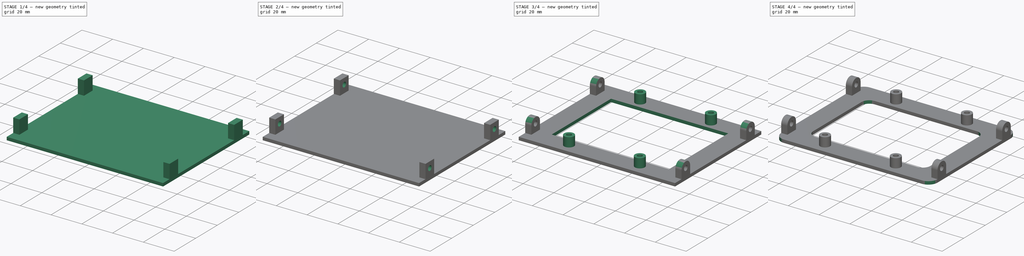
[diagram: build sequence overview — one tinted view per stage of 4, left to right]
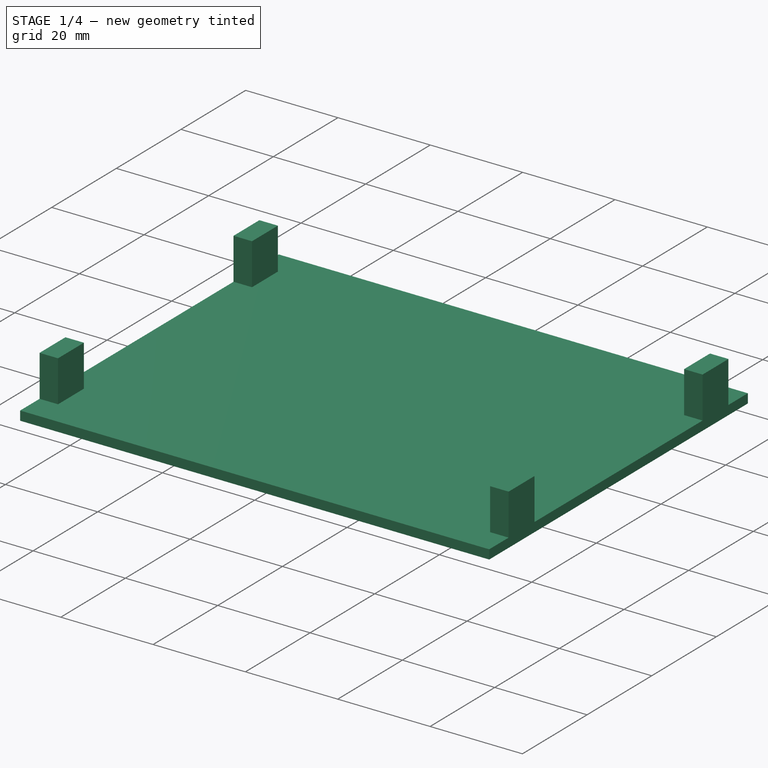
[diagram: stage 1 of 4 — iso view after this stage's code; geometry added in this stage tinted green]
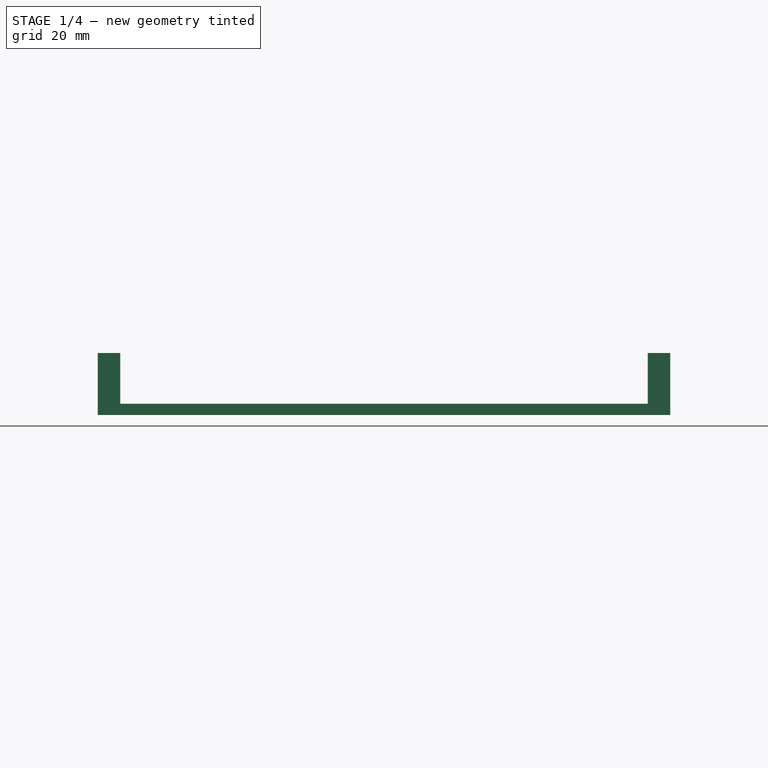
[diagram: stage 1 of 4 — front view after this stage's code; geometry added in this stage tinted green]
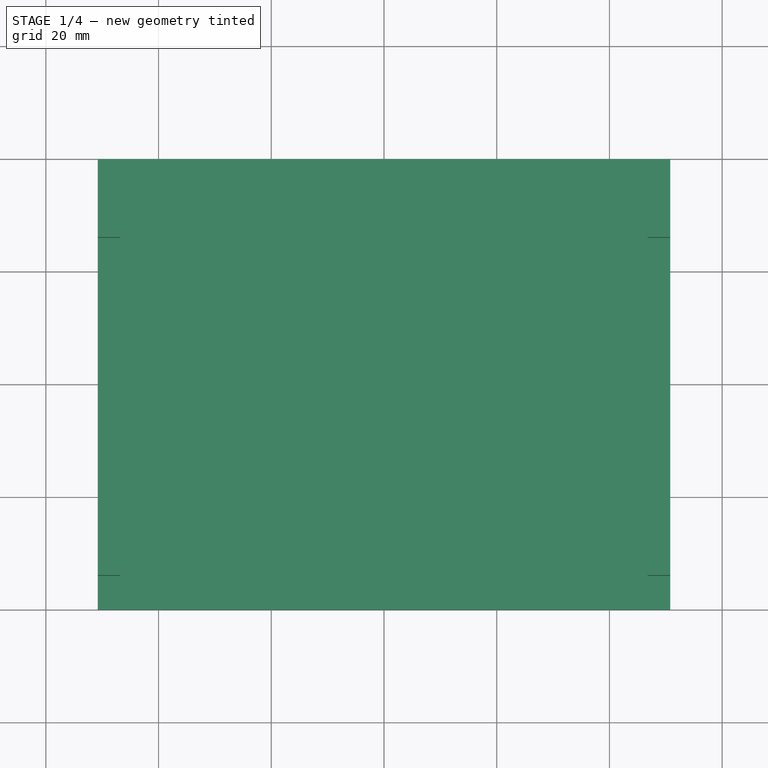
[diagram: stage 1 of 4 — top view after this stage's code; geometry added in this stage tinted green]
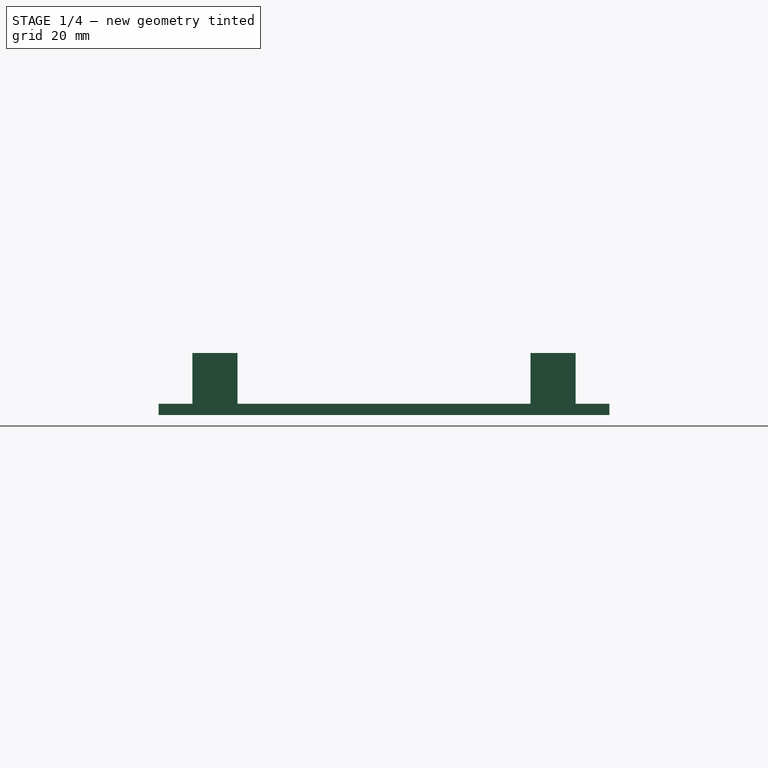
[diagram: stage 1 of 4 — right view after this stage's code; geometry added in this stage tinted green]
FCSTD DOCUMENT  (FreeCAD 0.20R24848 (Git))
Label: 5x7-pcb-in-3.5-holder
License: All rights reserved
LicenseURL: http://en.wikipedia.org/wiki/All_rights_reserved
objects: Sketcher::SketchObject×6, PartDesign::Pad×3, PartDesign::Pocket×3, PartDesign::Fillet×3, Spreadsheet::Sheet×1, PartDesign::Body×1, App::Part×1
note: 25 computed .brp shape members not serialized (recipe doc carries the construction recipe); baked Part::Feature solids carry a one-line shape summary decoded from their .brp

FEATURE [Spreadsheet::Sheet] Spreadsheet
  cells = A2=width_out; B2(width_out)==101.6mm; A3=length_out; B3(length_out)==80mm; A5=plate_thickness; B5(plate_thickness)==2mm; A7=hole_dist_o; B7(hole_dist_o)==60mm; C7=hole_diameter; D7(hole_diameter)==3.25mm; A8=hole_height_o; B8(hole_heigt_o)==7mm; C8=side_holder_height; D8(side_holder_height)==11mm; C9=side_holder_width; D9(side_holder_width)==8mm; A10=wall_thickness; B10(wall_thickness)==4mm; A12=pcb_hole_dist_x; B12(pcb_hole_dist_x)==46mm; A13=pcb_hole_dist_y; B13(pcb_hole_dist_y)==66mm; A14=pcb_hole_diameter; B14(pcb_hole_diameter)==3.2mm
FEATURE [Sketcher::SketchObject] Sketch
  FullyConstrained = true
  MapMode = 5
  Support = -> [XY_Plane001]
  expr: Constraints[6] = Spreadsheet.width_out
  expr: Constraints[7] = Spreadsheet.length_out
  sketch-geometry (4):
    g0: LineSegment StartX=-50.8 StartY=40 StartZ=0 EndX=50.8 EndY=40 EndZ=0
    g1: LineSegment StartX=50.8 StartY=40 StartZ=0 EndX=50.8 EndY=-40 EndZ=0
    g2: LineSegment StartX=50.8 StartY=-40 StartZ=0 EndX=-50.8 EndY=-40 EndZ=0
    g3: LineSegment StartX=-50.8 StartY=-40 StartZ=0 EndX=-50.8 EndY=40 EndZ=0
  constraints (10):
    c: Coincident(g0,g1)
    c: Coincident(g1,g2)
    c: Coincident(g2,g3)
    c: Coincident(g3,g0)
    c: Horizontal(g2)
    c: Vertical(g1)
    c: Distance(g2) = 101.6
    c: Distance(g3) = 80
    c: Symmetric(g0,g2,g-1)
    c: Symmetric(g0,g0,g-2)
FEATURE [PartDesign::Pad] Pad
  Direction = (0,0,1)
  Length = 2
  Length2 = 100
  Profile = -> Sketch
  Type = 0
  expr: Length = Spreadsheet.plate_thickness
FEATURE [Sketcher::SketchObject] Sketch001
  ExternalGeometry = -> [Pad]
  FullyConstrained = true
  MapMode = 5
  Placement = pos=(0,0,2) rot=(0,0,1;0rad)
  Support = -> [Pad]
  expr: Constraints[45] = Spreadsheet.hole_dist_o
  expr: Constraints[41] = Spreadsheet.side_holder_width
  expr: Constraints[37] = Spreadsheet.wall_thickness
  sketch-geometry (18):
    g0: LineSegment StartX=-50.8 StartY=34 StartZ=0 EndX=-46.8 EndY=34 EndZ=0
    g1: LineSegment StartX=-46.8 StartY=34 StartZ=0 EndX=-46.8 EndY=26 EndZ=0
    g2: LineSegment StartX=-46.8 StartY=26 StartZ=0 EndX=-50.8 EndY=26 EndZ=0
    g3: LineSegment StartX=-50.8 StartY=26 StartZ=0 EndX=-50.8 EndY=34 EndZ=0
    g4: LineSegment StartX=50.8 StartY=34 StartZ=0 EndX=46.8 EndY=34 EndZ=0
    g5: LineSegment StartX=46.8 StartY=34 StartZ=0 EndX=46.8 EndY=26 EndZ=0
    g6: LineSegment StartX=46.8 StartY=26 StartZ=0 EndX=50.8 EndY=26 EndZ=0
    g7: LineSegment StartX=50.8 StartY=26 StartZ=0 EndX=50.8 EndY=34 EndZ=0
    g8: LineSegment StartX=50.8 StartY=-26 StartZ=0 EndX=46.8 EndY=-26 EndZ=0
    g9: LineSegment StartX=46.8 StartY=-26 StartZ=0 EndX=46.8 EndY=-34 EndZ=0
    g10: LineSegment StartX=46.8 StartY=-34 StartZ=0 EndX=50.8 EndY=-34 EndZ=0
    g11: LineSegment StartX=50.8 StartY=-34 StartZ=0 EndX=50.8 EndY=-26 EndZ=0
    g12: LineSegment StartX=-50.8 StartY=-34 StartZ=0 EndX=-46.8 EndY=-34 EndZ=0
    g13: LineSegment StartX=-46.8 StartY=-34 StartZ=0 EndX=-46.8 EndY=-26 EndZ=0
    g14: LineSegment StartX=-46.8 StartY=-26 StartZ=0 EndX=-50.8 EndY=-26 EndZ=0
    g15: LineSegment StartX=-50.8 StartY=-26 StartZ=0 EndX=-50.8 EndY=-34 EndZ=0
    g16: LineSegment StartX=-46.8 StartY=30 StartZ=0 EndX=-46.8 EndY=-30 EndZ=0
    g17: LineSegment StartX=46.8 StartY=30 StartZ=0 EndX=46.8 EndY=-30 EndZ=0
  constraints (50):
    c: Coincident(g0,g1)
    c: Coincident(g1,g2)
    c: Coincident(g2,g3)
    c: Coincident(g3,g0)
    c: Horizontal(g0)
    c: Horizontal(g2)
    c: Vertical(g1)
    c: Vertical(g3)
    c: PointOnObject(g0,g-3)
    c: Coincident(g4,g5)
    c: Coincident(g5,g6)
    c: Coincident(g6,g7)
    c: Coincident(g7,g4)
    c: Horizontal(g4)
    c: Horizontal(g6)
    c: Vertical(g5)
    c: Vertical(g7)
    c: PointOnObject(g4,g-4)
    c: Coincident(g8,g9)
    c: Coincident(g9,g10)
    c: Coincident(g10,g11)
    c: Coincident(g11,g8)
    c: Horizontal(g8)
    c: Horizontal(g10)
    c: Vertical(g9)
    c: Vertical(g11)
    c: PointOnObject(g8,g-4)
    c: Coincident(g12,g13)
    c: Coincident(g13,g14)
    c: Coincident(g14,g15)
    c: Coincident(g15,g12)
    c: Horizontal(g12)
    c: Horizontal(g14)
    c: Vertical(g13)
    c: Vertical(g15)
    c: PointOnObject(g12,g-3)
    c: Equal(g2,g6)
    c: Distance(g0) = 4
    c: Equal(g1,g13)
    c: Equal(g13,g9)
    c: Equal(g9,g5)
    c: Distance(g1) = 8
    c: Symmetric(g8,g9,g17)
    c: Symmetric(g4,g5,g17)
    c: Symmetric(g17,g17,g-1)
    c: Distance(g17) = 60
    c: Symmetric(g16,g16,g-1)
    c: Equal(g17,g16)
    c: Symmetric(g13,g12,g16)
    c: Symmetric(g1,g0,g16)
FEATURE [PartDesign::Pad] Pad001
  BaseFeature = -> Pad
  Direction = (0,0,1)
  Length = 9
  Length2 = 100
  Profile = -> Sketch001
  Type = 0
  expr: Length = Spreadsheet.side_holder_height - Spreadsheet.plate_thickness
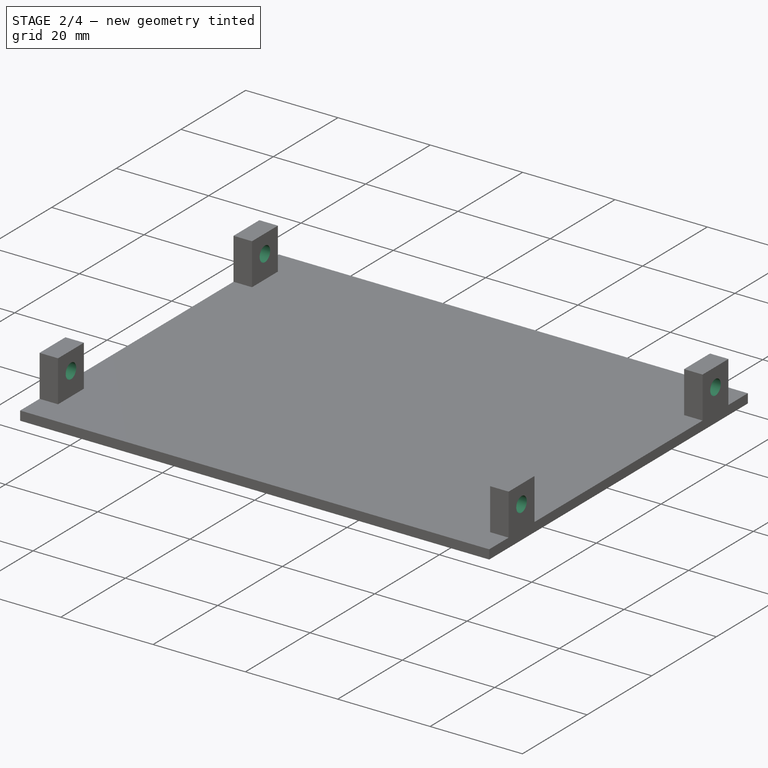
[diagram: stage 2 of 4 — iso view after this stage's code; geometry added in this stage tinted green]
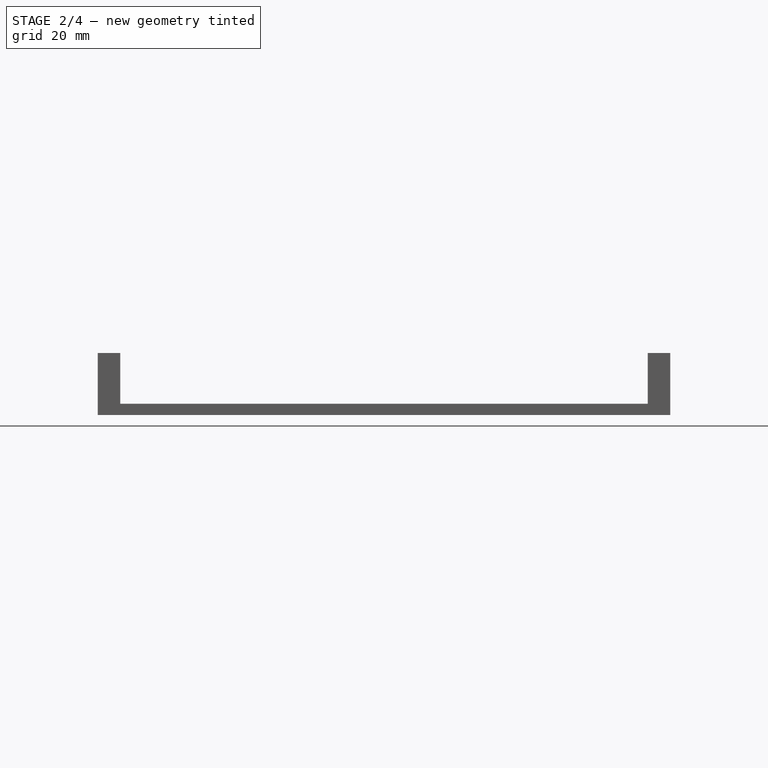
[diagram: stage 2 of 4 — front view after this stage's code; geometry added in this stage tinted green]
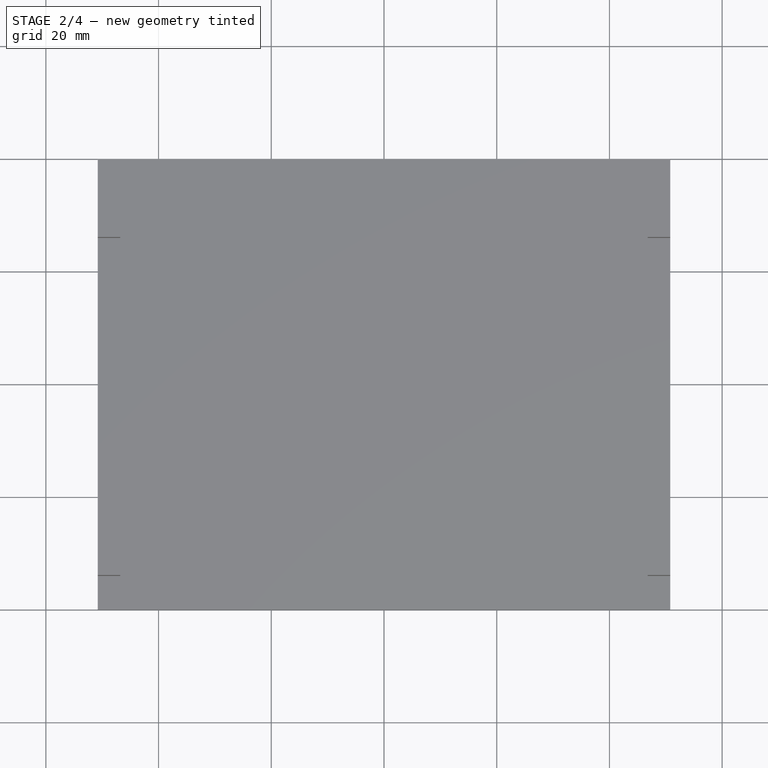
[diagram: stage 2 of 4 — top view after this stage's code; geometry added in this stage tinted green]
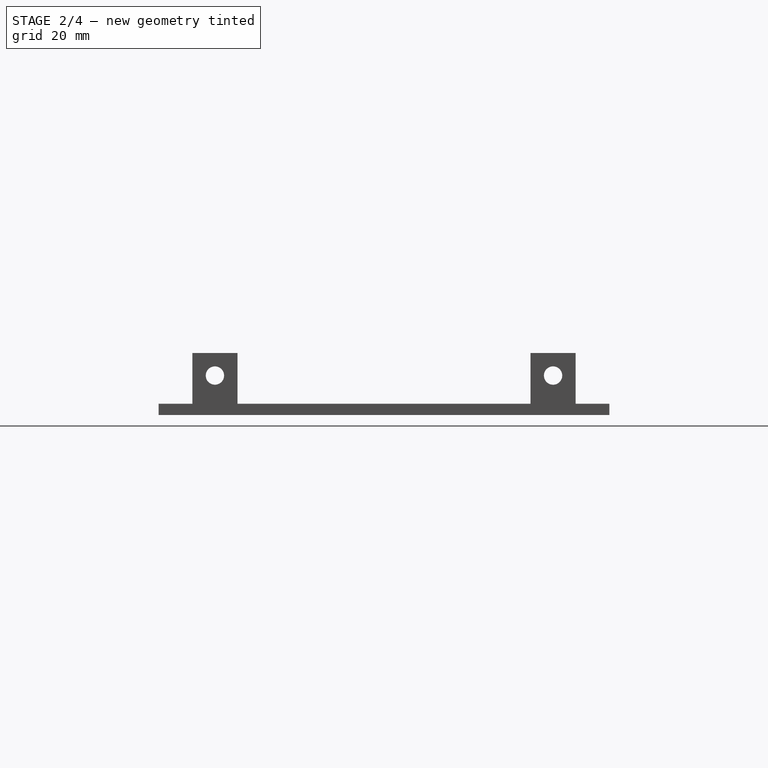
[diagram: stage 2 of 4 — right view after this stage's code; geometry added in this stage tinted green]
FEATURE [Sketcher::SketchObject] Sketch002
  ExternalGeometry = -> [Pad001]
  FullyConstrained = true
  MapMode = 5
  Placement = pos=(-50.8,0,0) rot=(0.57735,-0.57735,-0.57735;2.0944rad)
  Support = -> [Pad001]
  expr: Constraints[4] = Spreadsheet.hole_diameter
  expr: Constraints[3] = Spreadsheet.hole_heigt_o - Spreadsheet.plate_thickness
  sketch-geometry (2):
    g0: Circle CenterX=-30 CenterY=7 CenterZ=0 NormalX=0 NormalY=0 NormalZ=1 AngleXU=0 Radius=1.625
    g1: LineSegment StartX=-30 StartY=7 StartZ=0 EndX=-30 EndY=2 EndZ=0
  constraints (5):
    c: Coincident(g1,g0)
    c: Vertical(g1)
    c: Symmetric(g-3,g-3,g1)
    c: Distance(g1) = 5
    c: Diameter(g0) = 3.25
FEATURE [PartDesign::Pocket] Pocket
  BaseFeature = -> Pad001
  Length = 101.6
  Length2 = 100
  Profile = -> Sketch002
  Type = 0
  expr: Length = Spreadsheet.width_out
FEATURE [Sketcher::SketchObject] Sketch003
  ExternalGeometry = -> [Pocket]
  FullyConstrained = true
  MapMode = 5
  Placement = pos=(-50.8,0,0) rot=(0.57735,-0.57735,-0.57735;2.0944rad)
  Support = -> [Pocket]
  expr: Constraints[4] = Spreadsheet.hole_diameter
  expr: Constraints[3] = Spreadsheet.hole_heigt_o - Spreadsheet.plate_thickness
  sketch-geometry (2):
    g0: Circle CenterX=30 CenterY=7 CenterZ=0 NormalX=0 NormalY=0 NormalZ=1 AngleXU=0 Radius=1.625
    g1: LineSegment StartX=30 StartY=7 StartZ=0 EndX=30 EndY=2 EndZ=0
  constraints (5):
    c: Coincident(g1,g0)
    c: Vertical(g1)
    c: Symmetric(g-3,g-3,g1)
    c: Distance(g1) = 5
    c: Diameter(g0) = 3.25
FEATURE [PartDesign::Pocket] Pocket001
  BaseFeature = -> Pocket
  Length = 101.6
  Length2 = 100
  Profile = -> Sketch003
  Type = 0
  expr: Length = Spreadsheet.width_out
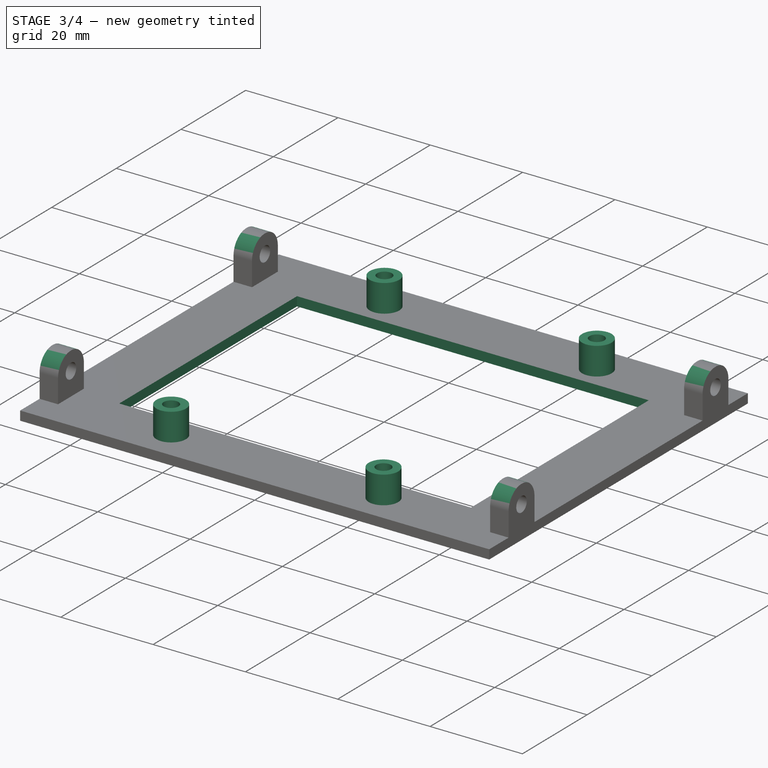
[diagram: stage 3 of 4 — iso view after this stage's code; geometry added in this stage tinted green]
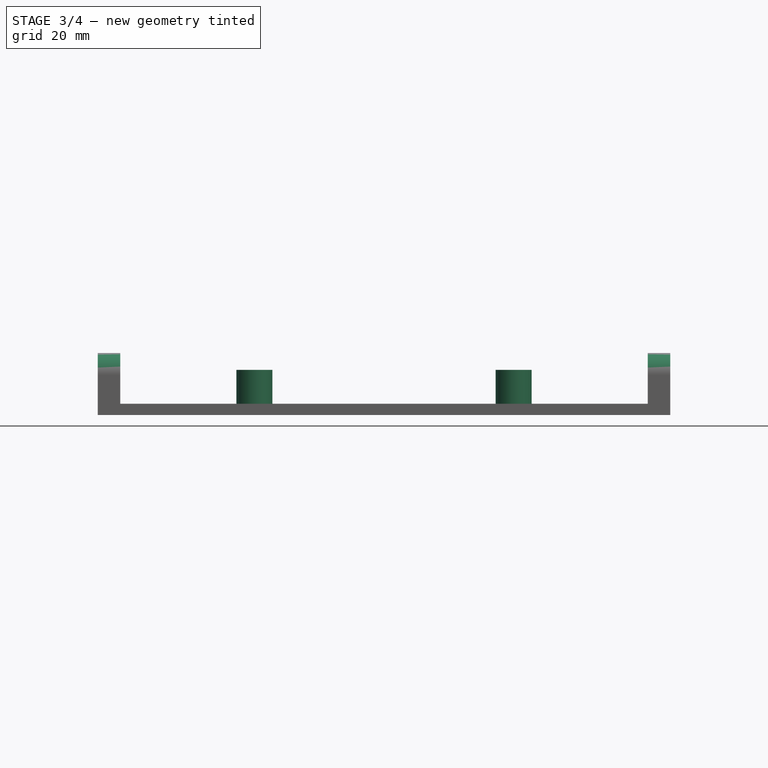
[diagram: stage 3 of 4 — front view after this stage's code; geometry added in this stage tinted green]
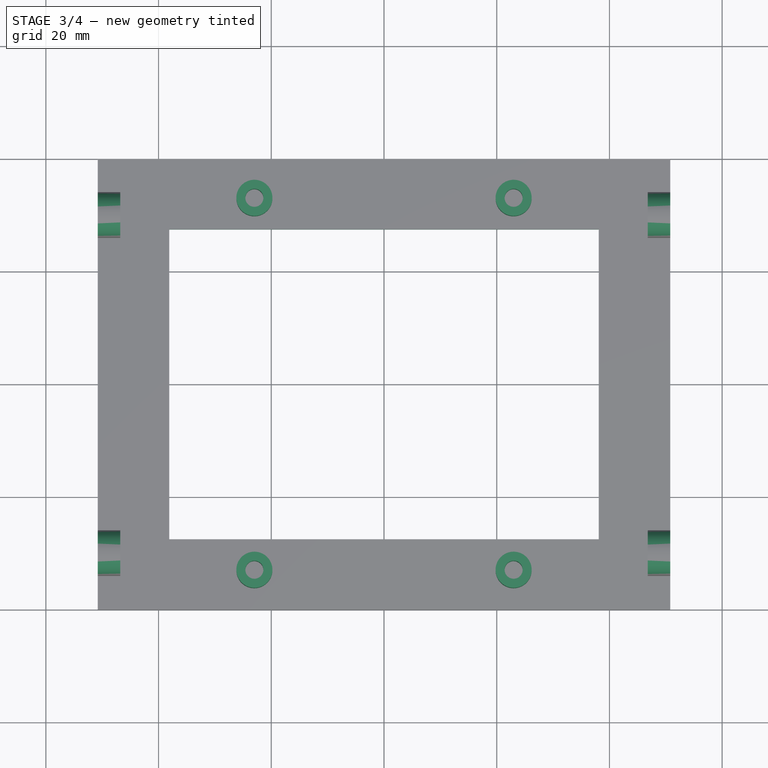
[diagram: stage 3 of 4 — top view after this stage's code; geometry added in this stage tinted green]
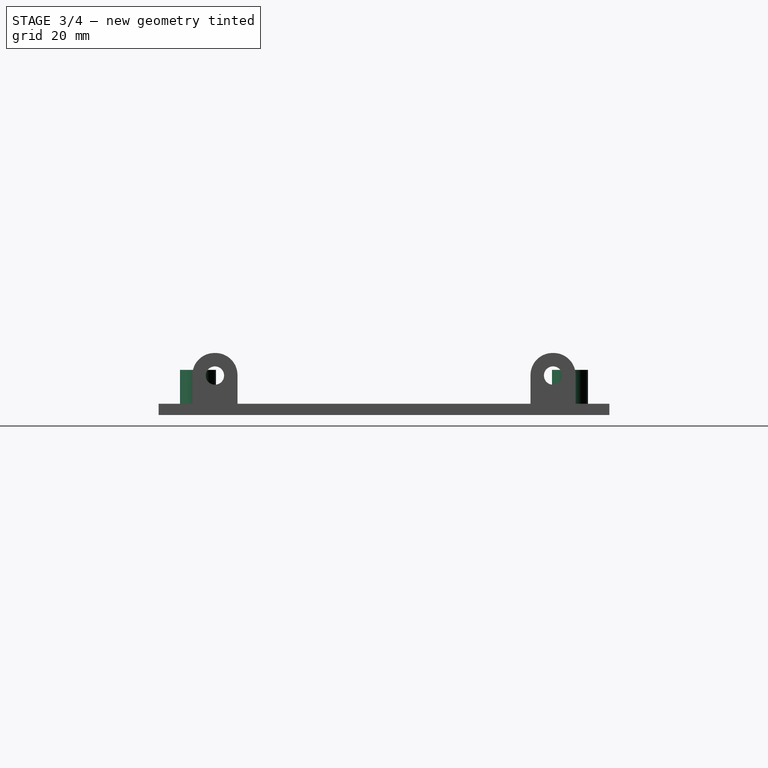
[diagram: stage 3 of 4 — right view after this stage's code; geometry added in this stage tinted green]
FEATURE [Sketcher::SketchObject] Sketch004
  FullyConstrained = true
  MapMode = 5
  Placement = pos=(0,0,2) rot=(0,0,1;0rad)
  Support = -> [Pocket001]
  expr: Constraints[25] = Spreadsheet.pcb_hole_diameter * 2
  expr: Constraints[17] = Spreadsheet.pcb_hole_diameter
  expr: Constraints[13] = Spreadsheet.pcb_hole_dist_y
  expr: Constraints[12] = Spreadsheet.pcb_hole_dist_x
  sketch-geometry (12):
    g0: Circle CenterX=-23 CenterY=33 CenterZ=0 NormalX=0 NormalY=0 NormalZ=1 AngleXU=0 Radius=1.6
    g1: Circle CenterX=23 CenterY=33 CenterZ=0 NormalX=0 NormalY=0 NormalZ=1 AngleXU=0 Radius=1.6
    g2: Circle CenterX=23 CenterY=-33 CenterZ=0 NormalX=0 NormalY=0 NormalZ=1 AngleXU=0 Radius=1.6
    g3: Circle CenterX=-23 CenterY=-33 CenterZ=0 NormalX=0 NormalY=0 NormalZ=1 AngleXU=0 Radius=1.6
    g4: LineSegment StartX=-23 StartY=33 StartZ=0 EndX=23 EndY=33 EndZ=0
    g5: LineSegment StartX=23 StartY=33 StartZ=0 EndX=23 EndY=-33 EndZ=0
    g6: LineSegment StartX=23 StartY=-33 StartZ=0 EndX=-23 EndY=-33 EndZ=0
    g7: LineSegment StartX=-23 StartY=-33 StartZ=0 EndX=-23 EndY=33 EndZ=0
    g8: Circle CenterX=-23 CenterY=33 CenterZ=0 NormalX=0 NormalY=0 NormalZ=1 AngleXU=0 Radius=3.2
    g9: Circle CenterX=23 CenterY=33 CenterZ=0 NormalX=0 NormalY=0 NormalZ=1 AngleXU=0 Radius=3.2
    g10: Circle CenterX=23 CenterY=-33 CenterZ=0 NormalX=0 NormalY=0 NormalZ=1 AngleXU=0 Radius=3.2
    g11: Circle CenterX=-23 CenterY=-33 CenterZ=0 NormalX=0 NormalY=0 NormalZ=1 AngleXU=0 Radius=3.2
  constraints (26):
    c: Coincident(g4,g5)
    c: Coincident(g5,g6)
    c: Coincident(g6,g7)
    c: Coincident(g7,g4)
    c: Horizontal(g6)
    c: Vertical(g7)
    c: Coincident(g4,g0)
    c: Coincident(g5,g2)
    c: Coincident(g1,g4)
    c: Coincident(g3,g6)
    c: Symmetric(g0,g1,g-2)
    c: Symmetric(g1,g2,g-1)
    c: Distance(g4) = 46
    c: Distance(g5) = 66
    c: Equal(g1,g0)
    c: Equal(g0,g3)
    c: Equal(g3,g2)
    c: Diameter(g0) = 3.2
    c: Coincident(g8,g0)
    c: Coincident(g9,g1)
    c: Coincident(g10,g2)
    c: Coincident(g11,g3)
    c: Equal(g11,g10)
    c: Equal(g10,g9)
    c: Equal(g9,g8)
    c: Diameter(g8) = 6.4
FEATURE [PartDesign::Pad] Pad002
  BaseFeature = -> Pocket001
  Direction = (0,0,1)
  Length = 6
  Length2 = 100
  Profile = -> Sketch004
  Type = 0
FEATURE [Sketcher::SketchObject] Sketch005
  FullyConstrained = true
  MapMode = 5
  Placement = pos=(0,0,2) rot=(0,0,1;0rad)
  Support = -> [Pad002]
  expr: Constraints[8] = Spreadsheet.width_out * 3 / 4
  sketch-geometry (4):
    g0: LineSegment StartX=-38.1 StartY=27.5 StartZ=0 EndX=38.1 EndY=27.5 EndZ=0
    g1: LineSegment StartX=38.1 StartY=27.5 StartZ=0 EndX=38.1 EndY=-27.5 EndZ=0
    g2: LineSegment StartX=38.1 StartY=-27.5 StartZ=0 EndX=-38.1 EndY=-27.5 EndZ=0
    g3: LineSegment StartX=-38.1 StartY=-27.5 StartZ=0 EndX=-38.1 EndY=27.5 EndZ=0
  constraints (10):
    c: Coincident(g0,g1)
    c: Coincident(g1,g2)
    c: Coincident(g2,g3)
    c: Coincident(g3,g0)
    c: Horizontal(g2)
    c: Vertical(g1)
    c: Symmetric(g0,g0,g-2)
    c: Symmetric(g0,g2,g-1)
    c: Distance(g0) = 76.2
    c: Distance(g1) = 55
FEATURE [PartDesign::Pocket] Pocket002
  BaseFeature = -> Pad002
  Length = 4
  Length2 = 100
  Profile = -> Sketch005
  Type = 0
  expr: Length = Spreadsheet.wall_thickness
FEATURE [PartDesign::Fillet] Fillet
  Base = -> Pocket002 [Edge88,Edge84,Edge78,Edge72,Edge66,Edge70,Edge77,Edge82]
  BaseFeature = -> Pocket002
  Radius = 3.9
  SupportTransform = false
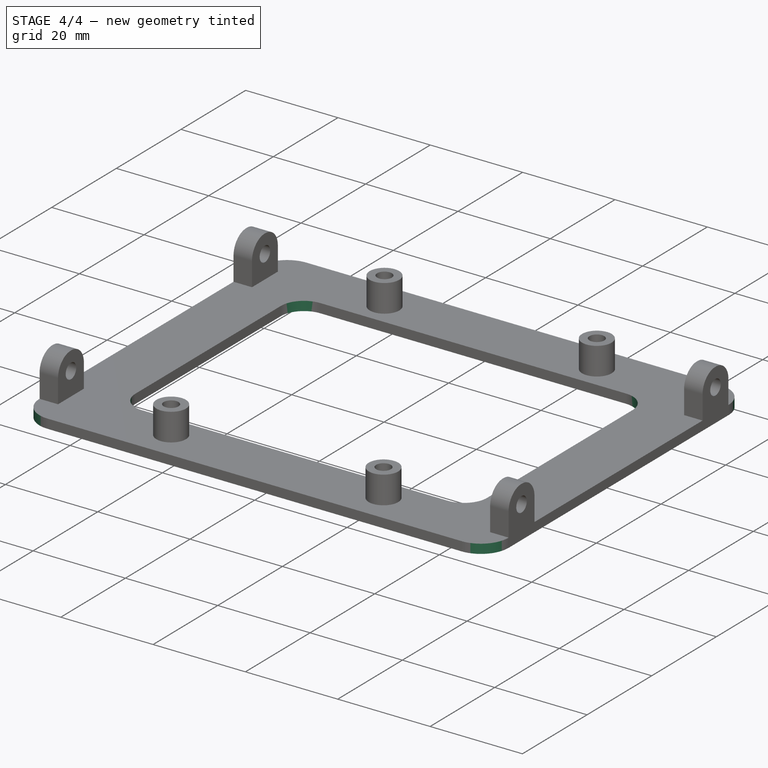
[diagram: stage 4 of 4 — iso view after this stage's code; geometry added in this stage tinted green]
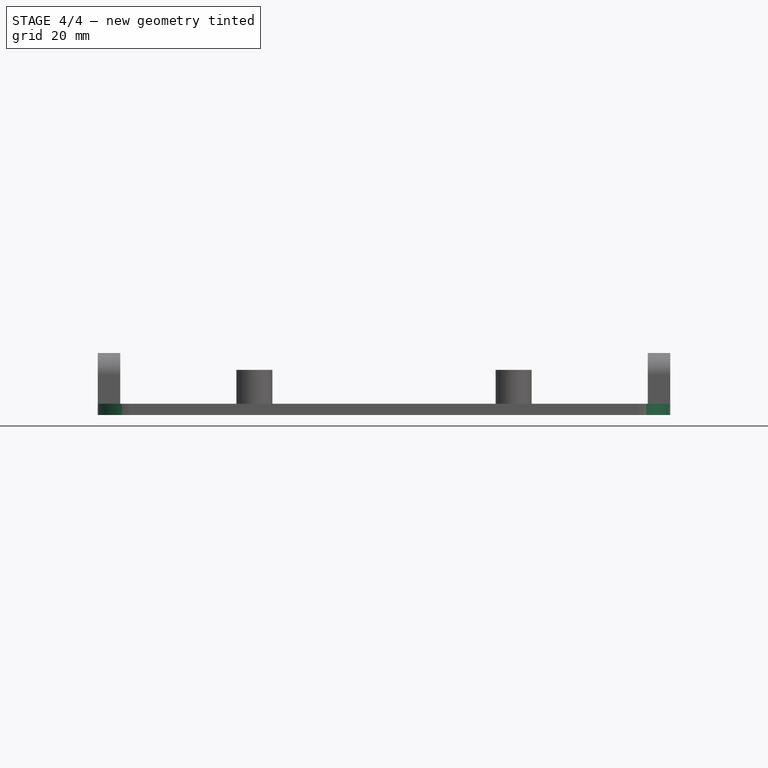
[diagram: stage 4 of 4 — front view after this stage's code; geometry added in this stage tinted green]
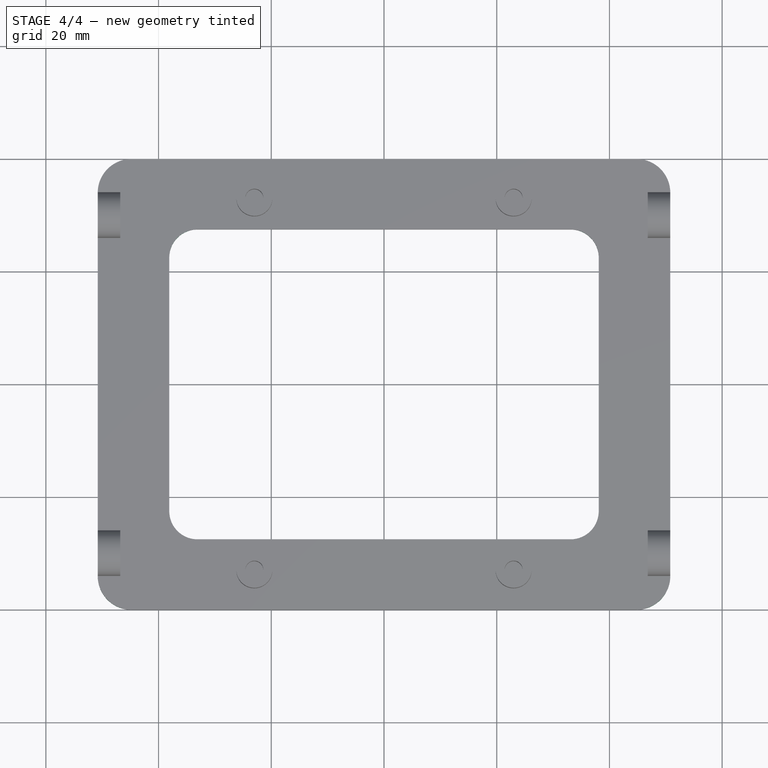
[diagram: stage 4 of 4 — top view after this stage's code; geometry added in this stage tinted green]
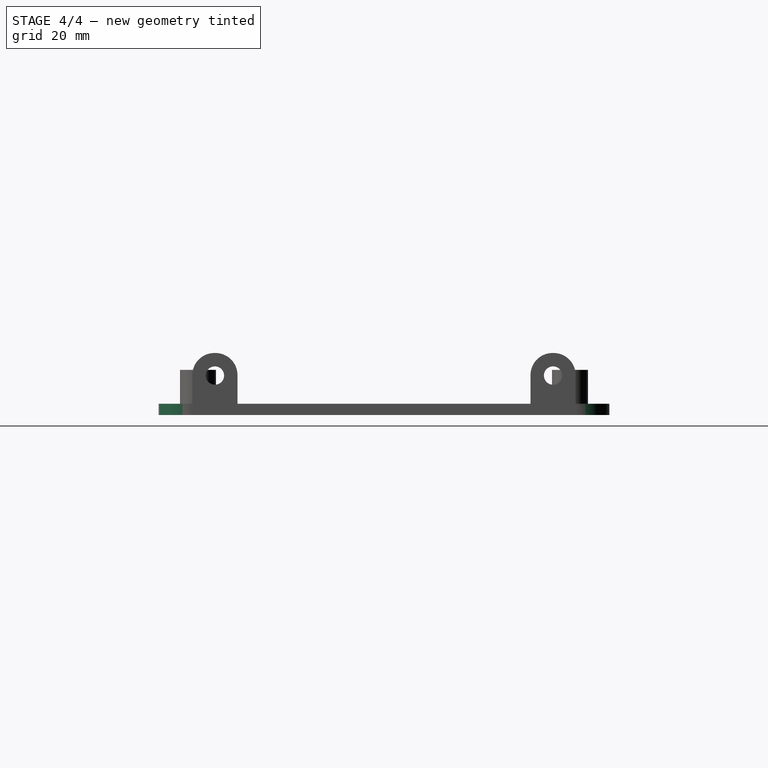
[diagram: stage 4 of 4 — right view after this stage's code; geometry added in this stage tinted green]
FEATURE [PartDesign::Fillet] Fillet001
  Base = -> Fillet [Edge13,Edge51,Edge14,Edge53]
  BaseFeature = -> Fillet
  Radius = 6
  SupportTransform = false
FEATURE [PartDesign::Fillet] Fillet002
  Base = -> Fillet001 [Edge66,Edge65,Edge68,Edge67]
  BaseFeature = -> Fillet001
  Radius = 5
  SupportTransform = false
FEATURE [PartDesign::Body] Body
  Group = -> [Sketch,Pad,Sketch001,Pad001,Sketch002,Pocket,Sketch003,Pocket001,Sketch004,Pad002,Sketch005,Pocket002,Fillet,Fillet001,Fillet002]
  Origin = -> Origin001
  Tip = -> Fillet002
FEATURE [App::Part] Part
  Group = -> [Body]
  Origin = -> Origin
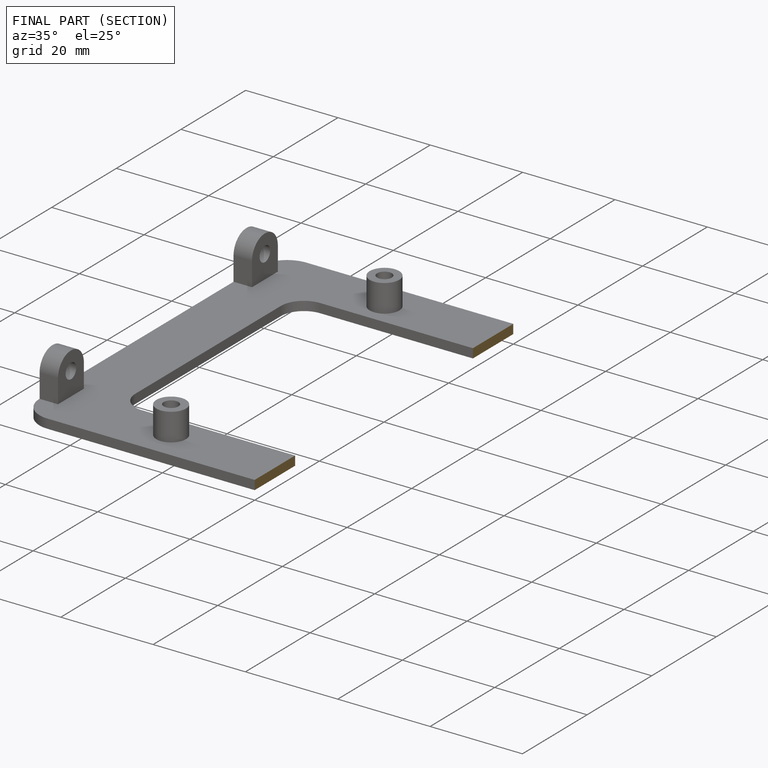
[diagram: finished part — half-section view (interior)]
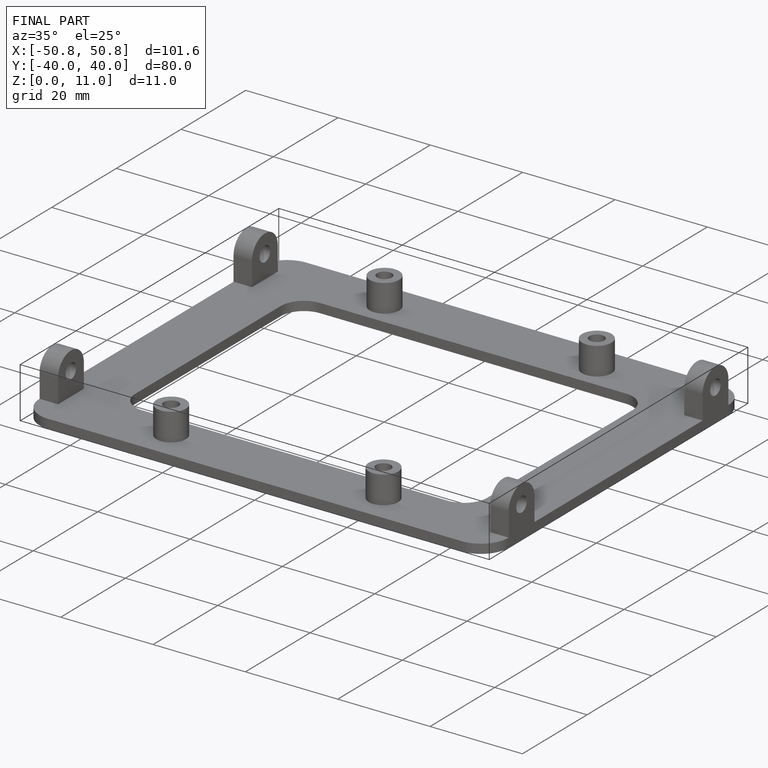
[diagram: finished part — iso view with bounding-box wireframe]
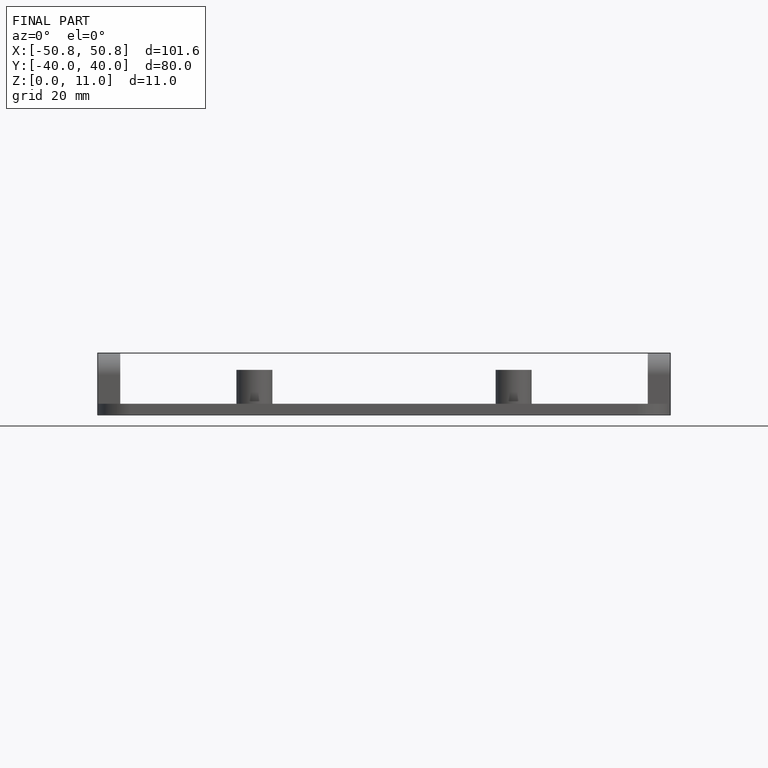
[diagram: finished part — front view with bounding-box wireframe]
